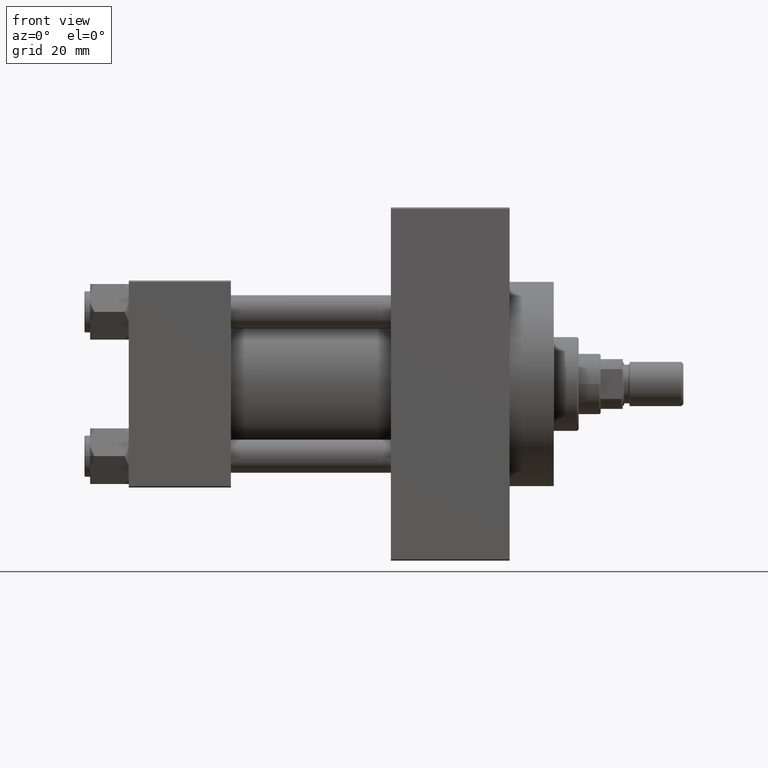
[diagram: clean part render]
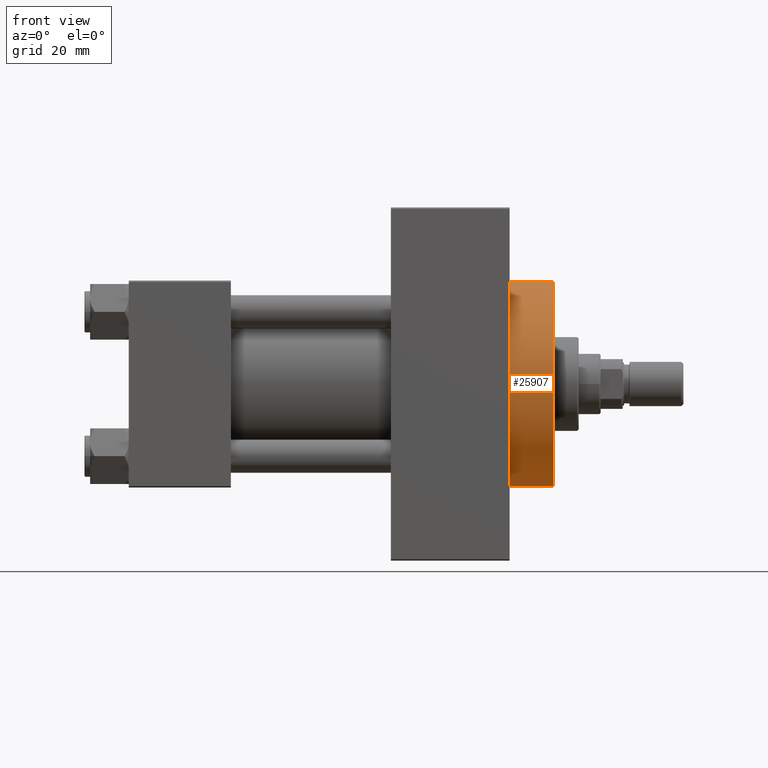
[diagram: same view with one face highlighted and labeled with its STEP entity id]
A machine part, front view. The second image highlights one B-rep face of the part: STEP entity #25907.
In plain terms, the highlighted cylindrical surface (partial cylindrical patch) has radius 37 mm, axis along (-1, -0, -0).
Its self-contained STEP definition (entity closure, byte-faithful):
#3107 = CARTESIAN_POINT ( 'NONE',  ( 138.0000000000000000, 4.531193156845206793E-15, -37.00000000000000000 ) ) ;
#3248 = CIRCLE ( 'NONE', #10467, 37.00000000000000000 ) ;
#4665 = CARTESIAN_POINT ( 'NONE',  ( 138.0000000000000000, 0.000000000000000000, 37.00000000000000000 ) ) ;
#4724 = AXIS2_PLACEMENT_3D ( 'NONE', #42046, #7849, #27199 ) ;
#5897 = DIRECTION ( 'NONE',  ( -1.000000000000000000, -0.000000000000000000, -0.000000000000000000 ) ) ;
#7849 = DIRECTION ( 'NONE',  ( 1.000000000000000000, 0.000000000000000000, 0.000000000000000000 ) ) ;
#10326 = CIRCLE ( 'NONE', #4724, 37.00000000000000000 ) ;
#10467 = AXIS2_PLACEMENT_3D ( 'NONE', #20068, #35417, #16308 ) ;
#10608 = VERTEX_POINT ( 'NONE', #32641 ) ;
#11875 = ORIENTED_EDGE ( 'NONE', *, *, #40686, .F. ) ;
#12423 = CARTESIAN_POINT ( 'NONE',  ( 154.0000000000000284, 4.531193156845206793E-15, -37.00000000000000000 ) ) ;
#13135 = EDGE_CURVE ( 'NONE', #10608, #21179, #19706, .T. ) ;
#16308 = DIRECTION ( 'NONE',  ( 0.000000000000000000, 0.000000000000000000, -1.000000000000000000 ) ) ;
#18908 = ORIENTED_EDGE ( 'NONE', *, *, #27915, .T. ) ;
#19706 = LINE ( 'NONE', #12423, #26014 ) ;
#20068 = CARTESIAN_POINT ( 'NONE',  ( 154.0000000000000284, 0.000000000000000000, 0.000000000000000000 ) ) ;
#20822 = ORIENTED_EDGE ( 'NONE', *, *, #13135, .F. ) ;
#21179 = VERTEX_POINT ( 'NONE', #3107 ) ;
#24745 = CYLINDRICAL_SURFACE ( 'NONE', #46231, 37.00000000000000000 ) ;
#24989 = CARTESIAN_POINT ( 'NONE',  ( 154.0000000000000284, 0.000000000000000000, 0.000000000000000000 ) ) ;
#25212 = ORIENTED_EDGE ( 'NONE', *, *, #36418, .T. ) ;
#25907 = ADVANCED_FACE ( 'NONE', ( #36569 ), #24745, .T. ) ;
#26014 = VECTOR ( 'NONE', #38830, 1000.000000000000000 ) ;
#27010 = VECTOR ( 'NONE', #36397, 1000.000000000000000 ) ;
#27199 = DIRECTION ( 'NONE',  ( 0.000000000000000000, 0.000000000000000000, -1.000000000000000000 ) ) ;
#27915 = EDGE_CURVE ( 'NONE', #43832, #38040, #32631, .T. ) ;
#32631 = LINE ( 'NONE', #44702, #27010 ) ;
#32641 = CARTESIAN_POINT ( 'NONE',  ( 154.0000000000000284, 4.531193156845206793E-15, -37.00000000000000000 ) ) ;
#35417 = DIRECTION ( 'NONE',  ( 1.000000000000000000, 0.000000000000000000, 0.000000000000000000 ) ) ;
#36397 = DIRECTION ( 'NONE',  ( -1.000000000000000000, -0.000000000000000000, -0.000000000000000000 ) ) ;
#36418 = EDGE_CURVE ( 'NONE', #38040, #21179, #10326, .T. ) ;
#36569 = FACE_OUTER_BOUND ( 'NONE', #38841, .T. ) ;
#36819 = DIRECTION ( 'NONE',  ( 0.000000000000000000, 0.000000000000000000, 1.000000000000000000 ) ) ;
#38040 = VERTEX_POINT ( 'NONE', #4665 ) ;
#38830 = DIRECTION ( 'NONE',  ( -1.000000000000000000, -0.000000000000000000, -0.000000000000000000 ) ) ;
#38841 = EDGE_LOOP ( 'NONE', ( #20822, #11875, #18908, #25212 ) ) ;
#40686 = EDGE_CURVE ( 'NONE', #43832, #10608, #3248, .T. ) ;
#42046 = CARTESIAN_POINT ( 'NONE',  ( 138.0000000000000000, 0.000000000000000000, 0.000000000000000000 ) ) ;
#43832 = VERTEX_POINT ( 'NONE', #47371 ) ;
#44702 = CARTESIAN_POINT ( 'NONE',  ( 154.0000000000000284, 0.000000000000000000, 37.00000000000000000 ) ) ;
#46231 = AXIS2_PLACEMENT_3D ( 'NONE', #24989, #5897, #36819 ) ;
#47371 = CARTESIAN_POINT ( 'NONE',  ( 154.0000000000000284, 0.000000000000000000, 37.00000000000000000 ) ) ;